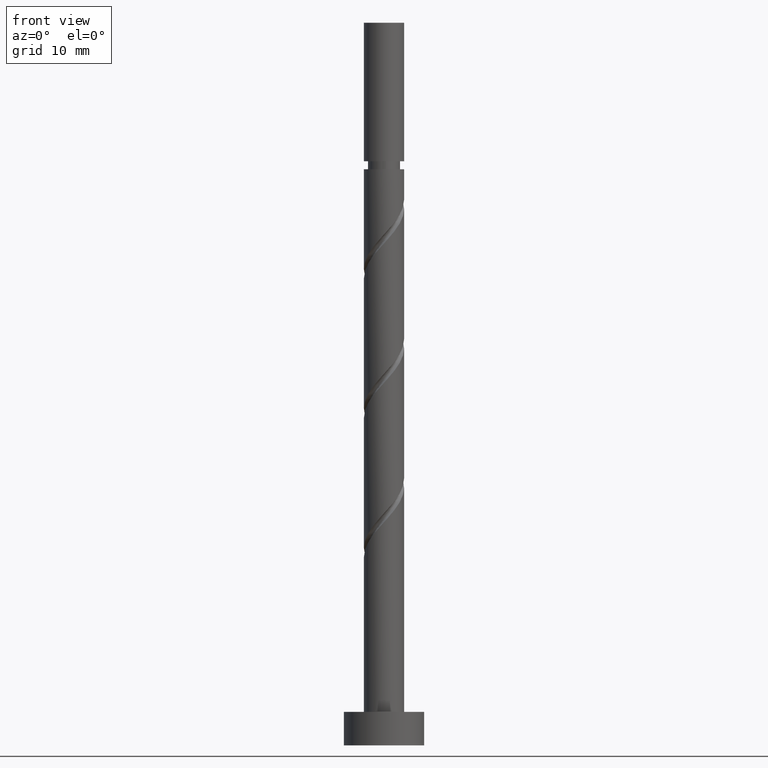
[diagram: clean part render]
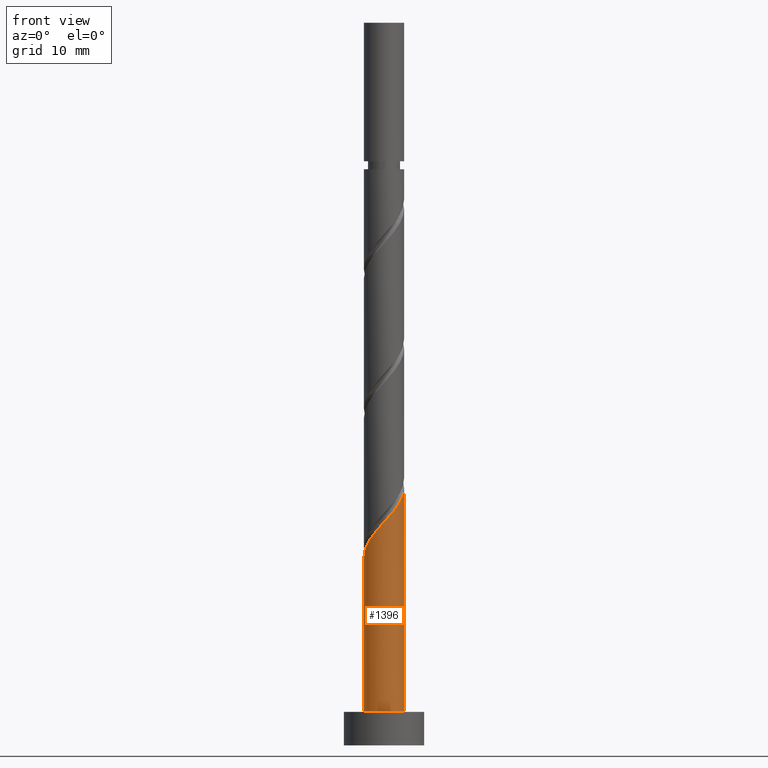
[diagram: same view with one face highlighted and labeled with its STEP entity id]
A machine part, front view. The second image highlights one B-rep face of the part: STEP entity #1396.
In plain terms, the highlighted cylindrical surface (edge-blend (fillet) strip) has radius 3 mm, axis along (-0, -0, -1).
Its self-contained STEP definition (entity closure, byte-faithful):
#40 = LINE ( 'NONE', #859, #1239 ) ;
#82 = CARTESIAN_POINT ( 'NONE',  ( 2.532207025513280474, -1.677408196705102883, 36.61875894822393462 ) ) ;
#207 = CARTESIAN_POINT ( 'NONE',  ( 2.926619631508484254, -0.8128149918040518118, 37.66042561489059892 ) ) ;
#222 = CARTESIAN_POINT ( 'NONE',  ( 3.000000000000000444, 3.673940397442060361E-16, 108.0000000000000000 ) ) ;
#229 = CARTESIAN_POINT ( 'NONE',  ( 0.5969924622639702916, -2.940000000000004388, 34.01459228155727033 ) ) ;
#241 = EDGE_CURVE ( 'NONE', #705, #969, #696, .T. ) ;
#251 = CARTESIAN_POINT ( 'NONE',  ( 3.000000000000004441, 5.547448029786144744E-16, 38.55812317342034135 ) ) ;
#255 = VECTOR ( 'NONE', #1171, 1000.000000000000000 ) ;
#316 = CARTESIAN_POINT ( 'NONE',  ( 0.1313422077098328755, -3.034554317013650859, 33.49375894822393462 ) ) ;
#322 = CARTESIAN_POINT ( 'NONE',  ( -3.000000000000005329, -0.3015113445777629075, 28.47576108216151880 ) ) ;
#328 = CARTESIAN_POINT ( 'NONE',  ( -2.845445682986359248, -1.062642716818108068, 29.32709228155727033 ) ) ;
#334 = FACE_OUTER_BOUND ( 'NONE', #817, .T. ) ;
#335 = CARTESIAN_POINT ( 'NONE',  ( -0.8128149918040515898, -2.926619631508484254, 32.45209228155727743 ) ) ;
#348 = EDGE_CURVE ( 'NONE', #750, #969, #1527, .T. ) ;
#375 = EDGE_CURVE ( 'NONE', #1149, #705, #1395, .T. ) ;
#450 = CARTESIAN_POINT ( 'NONE',  ( -2.940000000000004388, -0.5969924622639702916, 28.80625894822392752 ) ) ;
#479 = CARTESIAN_POINT ( 'NONE',  ( 2.211065689225170772, -2.027606598413816741, 36.09792561489059182 ) ) ;
#566 = CARTESIAN_POINT ( 'NONE',  ( -3.000000000000005329, -9.895447836915827092E-16, 28.14145650675367349 ) ) ;
#581 = CARTESIAN_POINT ( 'NONE',  ( -2.377805000122529933, -1.889924352937061514, 30.36875894822393818 ) ) ;
#598 = CARTESIAN_POINT ( 'NONE',  ( 1.062642716818107846, -2.845445682986359248, 34.53542561489061313 ) ) ;
#624 = DIRECTION ( 'NONE',  ( -0.000000000000000000, -0.000000000000000000, -1.000000000000000000 ) ) ;
#686 = AXIS2_PLACEMENT_3D ( 'NONE', #943, #1428, #1417 ) ;
#689 = CARTESIAN_POINT ( 'NONE',  ( -0.3407363920471091490, -2.980586974261068001, 32.97292561489060603 ) ) ;
#696 = LINE ( 'NONE', #222, #255 ) ;
#701 = DIRECTION ( 'NONE',  ( -1.000000000000000000, 0.000000000000000000, 0.000000000000000000 ) ) ;
#705 = VERTEX_POINT ( 'NONE', #251 ) ;
#716 = CYLINDRICAL_SURFACE ( 'NONE', #893, 3.000000000000000444 ) ;
#722 = CARTESIAN_POINT ( 'NONE',  ( 0.000000000000000000, 0.000000000000000000, 108.0000000000000000 ) ) ;
#746 = CARTESIAN_POINT ( 'NONE',  ( 3.000000000000004441, 5.547448029786144744E-16, 38.55812317342034135 ) ) ;
#750 = VERTEX_POINT ( 'NONE', #836 ) ;
#817 = EDGE_LOOP ( 'NONE', ( #1211, #1007, #1168, #990 ) ) ;
#836 = CARTESIAN_POINT ( 'NONE',  ( -3.000000000000000444, 0.000000000000000000, 5.000000000000000000 ) ) ;
#859 = CARTESIAN_POINT ( 'NONE',  ( -3.000000000000000444, 0.000000000000000000, 108.0000000000000000 ) ) ;
#893 = AXIS2_PLACEMENT_3D ( 'NONE', #722, #1332, #701 ) ;
#918 = CARTESIAN_POINT ( 'NONE',  ( -3.000000000000005329, -9.895447836915827092E-16, 28.14145650675367349 ) ) ;
#943 = CARTESIAN_POINT ( 'NONE',  ( 0.000000000000000000, 0.000000000000000000, 5.000000000000000000 ) ) ;
#969 = VERTEX_POINT ( 'NONE', #1496 ) ;
#990 = ORIENTED_EDGE ( 'NONE', *, *, #348, .T. ) ;
#1007 = ORIENTED_EDGE ( 'NONE', *, *, #375, .F. ) ;
#1047 = CARTESIAN_POINT ( 'NONE',  ( 2.980586974261068001, -0.3407363920471094265, 38.18125894822394173 ) ) ;
#1077 = CARTESIAN_POINT ( 'NONE',  ( 1.476283534877584680, -2.611625341554444812, 35.05625894822393462 ) ) ;
#1149 = VERTEX_POINT ( 'NONE', #918 ) ;
#1168 = ORIENTED_EDGE ( 'NONE', *, *, #1566, .T. ) ;
#1171 = DIRECTION ( 'NONE',  ( -0.000000000000000000, -0.000000000000000000, -1.000000000000000000 ) ) ;
#1179 = CARTESIAN_POINT ( 'NONE',  ( -2.611625341554444812, -1.476283534877585124, 29.84792561489060247 ) ) ;
#1192 = CARTESIAN_POINT ( 'NONE',  ( -1.677408196705102439, -2.532207025513280474, 31.41042561489059892 ) ) ;
#1211 = ORIENTED_EDGE ( 'NONE', *, *, #241, .F. ) ;
#1239 = VECTOR ( 'NONE', #624, 1000.000000000000000 ) ;
#1332 = DIRECTION ( 'NONE',  ( -0.000000000000000000, -0.000000000000000000, -1.000000000000000000 ) ) ;
#1395 =( BOUNDED_CURVE ( )  B_SPLINE_CURVE ( 2, ( #566, #322, #450, #328, #1179, #581, #1553, #1192, #1435, #335, #689, #316, #229, #598, #1077, #1571, #479, #82, #1407, #207, #1047, #1465, #746 ),
 .UNSPECIFIED., .F., .T. ) 
 B_SPLINE_CURVE_WITH_KNOTS ( ( 3, 2, 2, 2, 2, 2, 2, 2, 2, 2, 2, 3 ),
 ( 0.05453220231385523531, 0.06250000000000000000, 0.07499999999999995559, 0.08750000000000002220, 0.09999999999999997780, 0.1125000000000000444, 0.1250000000000000000, 0.1374999999999999556, 0.1500000000000000222, 0.1624999999999999778, 0.1750000000000000444, 0.1795322023138552492 ),
 .UNSPECIFIED. ) 
 CURVE ( )  GEOMETRIC_REPRESENTATION_ITEM ( )  RATIONAL_B_SPLINE_CURVE ( ( 0.9039174447099354026, 0.9019565955404647006, 0.9090909090909131685, 0.8978984914501292325, 0.9090909090909131685, 0.8978984914501292325, 0.9090909090909131685, 0.8978984914501292325, 0.9090909090909131685, 0.8978984914501292325, 0.9090909090909131685, 0.8978984914501292325, 0.9090909090909131685, 0.8978984914501292325, 0.9090909090909131685, 0.8978984914501292325, 0.9090909090909131685, 0.8978984914501292325, 0.9090909090909131685, 0.8978984914501292325, 0.9090909090909131685, 0.9050328050005775893, 0.9039174447099354026 ) ) 
 REPRESENTATION_ITEM ( '' )  );
#1396 = ADVANCED_FACE ( 'NONE', ( #334 ), #716, .T. ) ;
#1407 = CARTESIAN_POINT ( 'NONE',  ( 2.729413328510882586, -1.245111594254577625, 37.13959228155727743 ) ) ;
#1417 = DIRECTION ( 'NONE',  ( 1.000000000000000000, 0.000000000000000000, 0.000000000000000000 ) ) ;
#1428 = DIRECTION ( 'NONE',  ( 0.000000000000000000, 0.000000000000000000, 1.000000000000000000 ) ) ;
#1435 = CARTESIAN_POINT ( 'NONE',  ( -1.245111594254577625, -2.729413328510882586, 31.93125894822392752 ) ) ;
#1465 = CARTESIAN_POINT ( 'NONE',  ( 3.000000000000004885, -0.1709212123392999383, 38.36861208421306202 ) ) ;
#1496 = CARTESIAN_POINT ( 'NONE',  ( 3.000000000000000444, 3.673940397442060361E-16, 5.000000000000000000 ) ) ;
#1527 = CIRCLE ( 'NONE', #686, 3.000000000000000444 ) ;
#1553 = CARTESIAN_POINT ( 'NONE',  ( -2.027606598413816741, -2.211065689225170772, 30.88959228155726677 ) ) ;
#1566 = EDGE_CURVE ( 'NONE', #1149, #750, #40, .T. ) ;
#1571 = CARTESIAN_POINT ( 'NONE',  ( 1.889924352937061069, -2.377805000122529933, 35.57709228155724901 ) ) ;